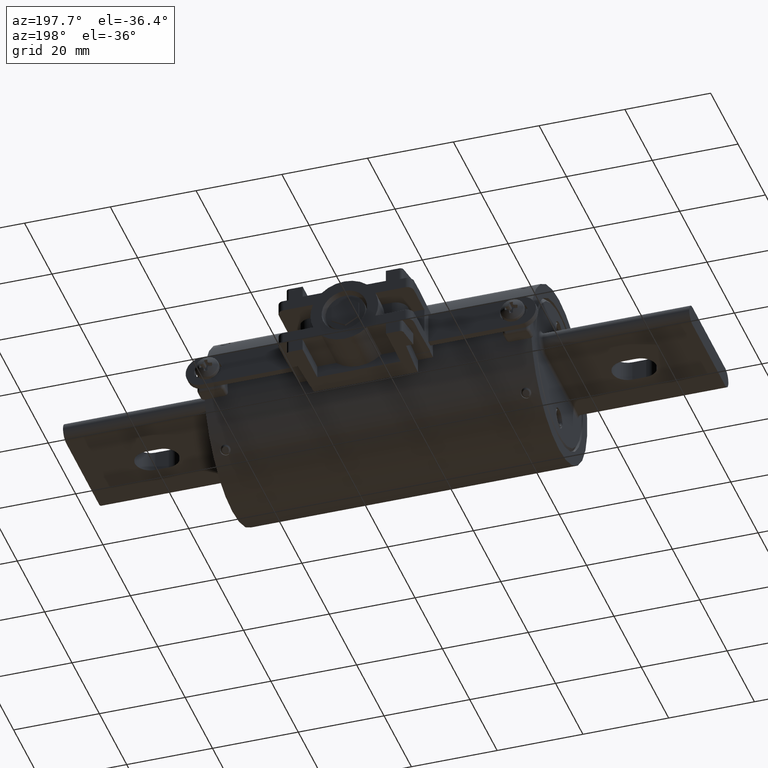
[diagram: clean part render]
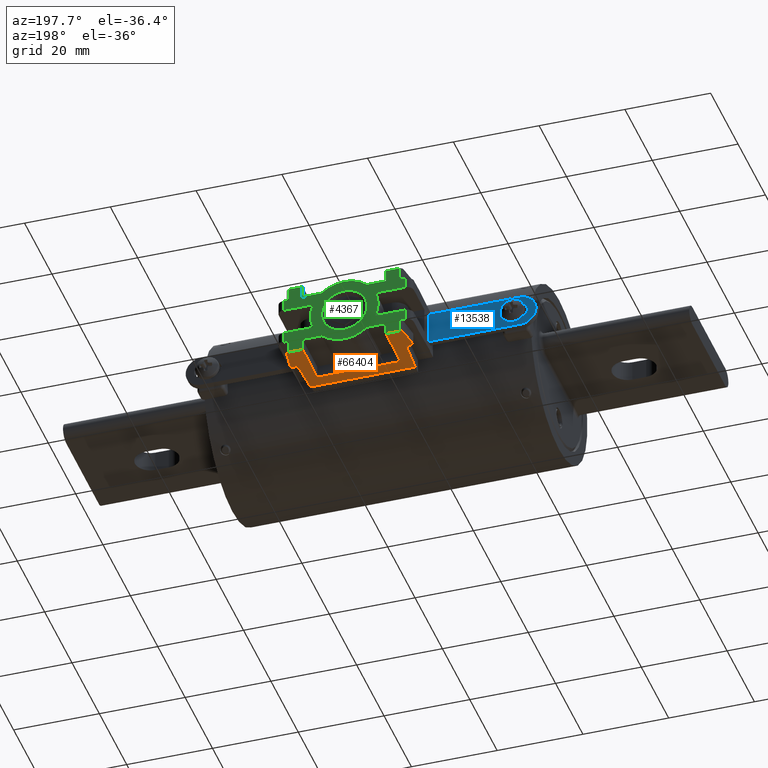
[diagram: same view with three faces highlighted in distinct colors, each labeled with its STEP entity id]
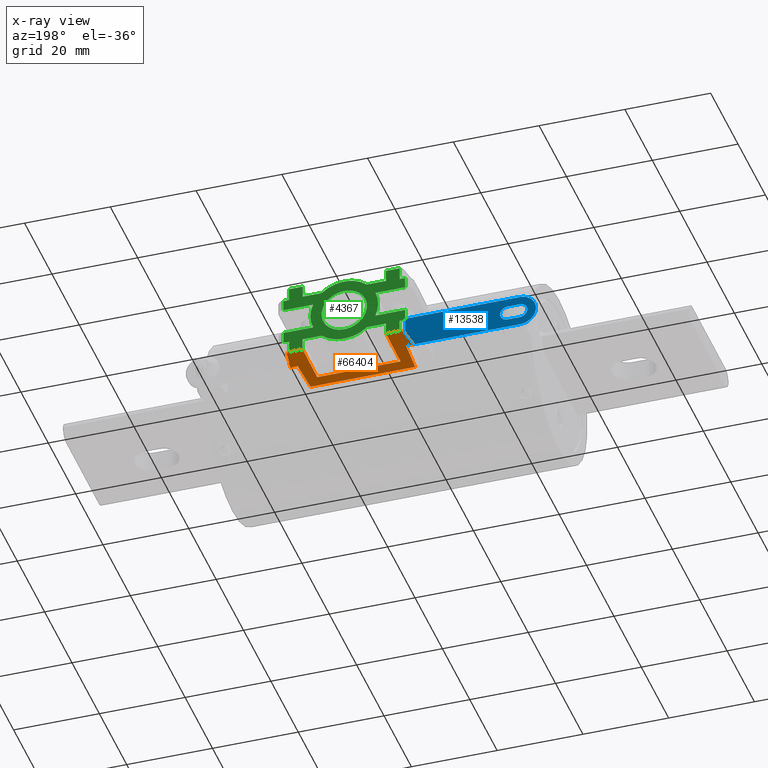
[diagram: x-ray of the same camera — body ghosted, the three highlighted faces saturated]
A machine part, auxiliary view with three faces highlighted in distinct colors.
The next image is the same camera in x-ray (body ghosted, the three faces saturated) — at least one of them is partly hidden behind the body in this view.
Their STEP definitions:

[orange] entity #66404 — the highlighted planar face has unit normal (0, -0.0175, 0.9998).
#1124 = CARTESIAN_POINT ( 'NONE',  ( 0.6865000000000000000, 1.259021418307482600, -0.3445016545476123900 ) ) ;
#1201 = CARTESIAN_POINT ( 'NONE',  ( 1.870000000000000100, 1.479021418307482800, -0.3406615402634045100 ) ) ;
#1484 = FACE_OUTER_BOUND ( 'NONE', #35522, .T. ) ;
#2175 = EDGE_CURVE ( 'NONE', #25905, #49283, #48193, .T. ) ;
#3234 = DIRECTION ( 'NONE',  ( -0.1391523146935431100, -0.9901201667701141600, -0.01728261179771005400 ) ) ;
#3770 = ORIENTED_EDGE ( 'NONE', *, *, #68914, .F. ) ;
#4120 = LINE ( 'NONE', #75244, #39088 ) ;
#5134 = VERTEX_POINT ( 'NONE', #77856 ) ;
#6123 = EDGE_CURVE ( 'NONE', #34374, #25382, #72603, .T. ) ;
#7663 = ORIENTED_EDGE ( 'NONE', *, *, #40968, .F. ) ;
#8501 = DIRECTION ( 'NONE',  ( 0.0000000000000000000, -0.01745240643728360200, 0.9998476951563912700 ) ) ;
#8981 = DIRECTION ( 'NONE',  ( 1.000000000000000000, 0.0000000000000000000, 0.0000000000000000000 ) ) ;
#9017 = VERTEX_POINT ( 'NONE', #48461 ) ;
#12663 = CARTESIAN_POINT ( 'NONE',  ( 1.870000000000000100, 1.479021418307482800, -0.3406615402634045100 ) ) ;
#13029 = EDGE_CURVE ( 'NONE', #56208, #80771, #26871, .T. ) ;
#13980 = AXIS2_PLACEMENT_3D ( 'NONE', #47887, #8501, #54540 ) ;
#14398 = VERTEX_POINT ( 'NONE', #72971 ) ;
#14563 = ORIENTED_EDGE ( 'NONE', *, *, #33420, .F. ) ;
#14853 = VECTOR ( 'NONE', #23648, 39.37007874015748100 ) ;
#17004 = EDGE_CURVE ( 'NONE', #25905, #19540, #54369, .T. ) ;
#19282 = VECTOR ( 'NONE', #3234, 39.37007874015748900 ) ;
#19540 = VERTEX_POINT ( 'NONE', #1124 ) ;
#19806 = ORIENTED_EDGE ( 'NONE', *, *, #63070, .T. ) ;
#20116 = CARTESIAN_POINT ( 'NONE',  ( 0.7137895437067658400, 1.453196611336284600, -0.3411123139458454000 ) ) ;
#20865 = CARTESIAN_POINT ( 'NONE',  ( 0.7434975857690131500, 1.479021418307482800, -0.3406615402634045100 ) ) ;
#21097 = CARTESIAN_POINT ( 'NONE',  ( 1.813500000000000100, 1.259021418307482600, -0.3445016545476124500 ) ) ;
#21176 = CARTESIAN_POINT ( 'NONE',  ( 0.8674999999999999400, 1.479021418307482800, -0.3406615402634045100 ) ) ;
#21568 = VECTOR ( 'NONE', #8981, 39.37007874015748100 ) ;
#23648 = DIRECTION ( 'NONE',  ( -1.000000000000000000, 0.0000000000000000000, 0.0000000000000000000 ) ) ;
#23928 = CARTESIAN_POINT ( 'NONE',  ( 1.870000000000000100, 1.059021418307482600, -0.3479926675332559700 ) ) ;
#24907 = CARTESIAN_POINT ( 'NONE',  ( 1.632500000000000100, 1.479021418307482800, -0.3406615402634045100 ) ) ;
#25359 = CARTESIAN_POINT ( 'NONE',  ( 1.632500000000000100, 0.9440214183074828700, -0.3500000000000009800 ) ) ;
#25382 = VERTEX_POINT ( 'NONE', #21097 ) ;
#25905 = VERTEX_POINT ( 'NONE', #67383 ) ;
#25918 = DIRECTION ( 'NONE',  ( -0.05232800705137966700, -0.9984778551437665200, -0.01742849579092196600 ) ) ;
#26694 = CARTESIAN_POINT ( 'NONE',  ( 0.7690084504741582200, 0.9440214183074828700, -0.3499999999999999800 ) ) ;
#26871 = LINE ( 'NONE', #1201, #42308 ) ;
#27121 = LINE ( 'NONE', #12663, #44638 ) ;
#27823 = LINE ( 'NONE', #25359, #62771 ) ;
#28486 = ORIENTED_EDGE ( 'NONE', *, *, #13029, .F. ) ;
#28506 = CARTESIAN_POINT ( 'NONE',  ( 0.7278112698438403700, 1.479021418307482600, -0.3406615402634045100 ) ) ;
#28513 = CARTESIAN_POINT ( 'NONE',  ( 1.870000000000000100, 1.259021418307482600, -0.3445016545476123900 ) ) ;
#30644 = CARTESIAN_POINT ( 'NONE',  ( 1.786210456293234200, 1.453196611336284600, -0.3411123139458455100 ) ) ;
#31349 = VERTEX_POINT ( 'NONE', #21176 ) ;
#32795 = LINE ( 'NONE', #38538, #84995 ) ;
#33420 = EDGE_CURVE ( 'NONE', #19540, #42002, #39078, .T. ) ;
#33851 = DIRECTION ( 'NONE',  ( 0.05232800705137966700, -0.9984778551437665200, -0.01742849579092196600 ) ) ;
#34058 = DIRECTION ( 'NONE',  ( -1.000000000000000000, -0.0000000000000000000, -0.0000000000000000000 ) ) ;
#34138 = CARTESIAN_POINT ( 'NONE',  ( 0.7720232079093861700, 0.8864964196055520300, -0.3510041025873388300 ) ) ;
#34374 = VERTEX_POINT ( 'NONE', #70148 ) ;
#35156 = EDGE_CURVE ( 'NONE', #31349, #49283, #27121, .T. ) ;
#35309 = CARTESIAN_POINT ( 'NONE',  ( 0.7524999999999999500, 1.259021418307482600, -0.3445016545476123900 ) ) ;
#35522 = EDGE_LOOP ( 'NONE', ( #78972, #46935, #64257, #3770, #28486, #40986, #36985, #54595, #19806, #66111, #7663, #14563, #58868, #43823 ) ) ;
#35970 = CARTESIAN_POINT ( 'NONE',  ( 0.8674999999999999400, 0.9440214183074828700, -0.3500000000000009800 ) ) ;
#36985 = ORIENTED_EDGE ( 'NONE', *, *, #6123, .T. ) ;
#37834 = VECTOR ( 'NONE', #77819, 39.37007874015748900 ) ;
#38538 = CARTESIAN_POINT ( 'NONE',  ( 1.870000000000000100, 1.259021418307482600, -0.3445016545476123900 ) ) ;
#39078 = LINE ( 'NONE', #28513, #21568 ) ;
#39088 = VECTOR ( 'NONE', #81773, 39.37007874015748100 ) ;
#40968 = EDGE_CURVE ( 'NONE', #42002, #61880, #74804, .T. ) ;
#40986 = ORIENTED_EDGE ( 'NONE', *, *, #80037, .T. ) ;
#42002 = VERTEX_POINT ( 'NONE', #35309 ) ;
#42308 = VECTOR ( 'NONE', #34058, 39.37007874015748100 ) ;
#42627 = CARTESIAN_POINT ( 'NONE',  ( 0.6660034048106331400, 1.113180565485096100, -0.3470473161028138100 ) ) ;
#43355 = VECTOR ( 'NONE', #25918, 39.37007874015748900 ) ;
#43581 = CARTESIAN_POINT ( 'NONE',  ( 1.756502414230987100, 1.479021418307482800, -0.3406615402634045100 ) ) ;
#43709 = VECTOR ( 'NONE', #81729, 39.37007874015748100 ) ;
#43823 = ORIENTED_EDGE ( 'NONE', *, *, #2175, .T. ) ;
#44638 = VECTOR ( 'NONE', #52108, 39.37007874015748100 ) ;
#44730 = EDGE_CURVE ( 'NONE', #65049, #9017, #65162, .T. ) ;
#45762 = LINE ( 'NONE', #35970, #43709 ) ;
#45788 = CARTESIAN_POINT ( 'NONE',  ( 1.731372185289855600, 0.9512843813488676100, -0.3498732245085423600 ) ) ;
#46935 = ORIENTED_EDGE ( 'NONE', *, *, #65472, .T. ) ;
#47887 = CARTESIAN_POINT ( 'NONE',  ( 1.870000000000000100, 0.9440214183074828700, -0.3500000000000009800 ) ) ;
#48193 =( BOUNDED_CURVE ( )  B_SPLINE_CURVE ( 3, ( #20116, #73631, #28506, #20865 ),
 .UNSPECIFIED., .F., .T. ) 
 B_SPLINE_CURVE_WITH_KNOTS ( ( 4, 4 ),
 ( 4.852015320544232700, 6.283185307179586200 ),
 .UNSPECIFIED. ) 
 CURVE ( )  GEOMETRIC_REPRESENTATION_ITEM ( )  RATIONAL_B_SPLINE_CURVE ( ( 1.000000000000000000, 0.8364730534818472000, 0.8364730534818472000, 1.000000000000000000 ) ) 
 REPRESENTATION_ITEM ( '' )  );
#48461 = CARTESIAN_POINT ( 'NONE',  ( 0.8674999999999999400, 1.059021418307482600, -0.3479926675332559700 ) ) ;
#49283 = VERTEX_POINT ( 'NONE', #81878 ) ;
#50255 = CARTESIAN_POINT ( 'NONE',  ( 1.772188730156159900, 1.479021418307482600, -0.3406615402634045100 ) ) ;
#52108 = DIRECTION ( 'NONE',  ( -1.000000000000000000, -0.0000000000000000000, -0.0000000000000000000 ) ) ;
#54369 = LINE ( 'NONE', #42627, #19282 ) ;
#54540 = DIRECTION ( 'NONE',  ( 0.0000000000000000000, -0.9998476951563912700, -0.01745240643728360200 ) ) ;
#54595 = ORIENTED_EDGE ( 'NONE', *, *, #79233, .T. ) ;
#56208 = VERTEX_POINT ( 'NONE', #56949 ) ;
#56949 = CARTESIAN_POINT ( 'NONE',  ( 1.756502414230987100, 1.479021418307482800, -0.3406615402634045100 ) ) ;
#58868 = ORIENTED_EDGE ( 'NONE', *, *, #17004, .F. ) ;
#60806 = LINE ( 'NONE', #45788, #43355 ) ;
#61880 = VERTEX_POINT ( 'NONE', #26694 ) ;
#62771 = VECTOR ( 'NONE', #71220, 39.37007874015748100 ) ;
#63070 = EDGE_CURVE ( 'NONE', #5134, #14398, #60806, .T. ) ;
#64257 = ORIENTED_EDGE ( 'NONE', *, *, #44730, .F. ) ;
#65049 = VERTEX_POINT ( 'NONE', #77514 ) ;
#65162 = LINE ( 'NONE', #23928, #14853 ) ;
#65472 = EDGE_CURVE ( 'NONE', #31349, #9017, #45762, .T. ) ;
#66111 = ORIENTED_EDGE ( 'NONE', *, *, #76316, .T. ) ;
#66404 = ADVANCED_FACE ( 'NONE', ( #1484 ), #73588, .F. ) ;
#66680 = VECTOR ( 'NONE', #33851, 39.37007874015748900 ) ;
#67383 = CARTESIAN_POINT ( 'NONE',  ( 0.7137895437067658400, 1.453196611336284600, -0.3411123139458454000 ) ) ;
#68914 = EDGE_CURVE ( 'NONE', #80771, #65049, #27823, .T. ) ;
#69751 =( BOUNDED_CURVE ( )  B_SPLINE_CURVE ( 3, ( #43581, #50255, #69866, #30644 ),
 .UNSPECIFIED., .F., .F. ) 
 B_SPLINE_CURVE_WITH_KNOTS ( ( 4, 4 ),
 ( 3.141592653589792700, 4.572762640225146700 ),
 .UNSPECIFIED. ) 
 CURVE ( )  GEOMETRIC_REPRESENTATION_ITEM ( )  RATIONAL_B_SPLINE_CURVE ( ( 1.000000000000000000, 0.8364730534818472000, 0.8364730534818472000, 1.000000000000000000 ) ) 
 REPRESENTATION_ITEM ( '' )  );
#69866 = CARTESIAN_POINT ( 'NONE',  ( 1.784027343063288900, 1.468730269113175600, -0.3408411729407770900 ) ) ;
#70148 = CARTESIAN_POINT ( 'NONE',  ( 1.786210456293234200, 1.453196611336284600, -0.3411123139458455100 ) ) ;
#70309 = DIRECTION ( 'NONE',  ( -1.000000000000000000, 0.0000000000000000000, 0.0000000000000000000 ) ) ;
#71220 = DIRECTION ( 'NONE',  ( 0.0000000000000000000, -0.9998476951563912700, -0.01745240643728360200 ) ) ;
#72603 = LINE ( 'NONE', #80514, #37834 ) ;
#72971 = CARTESIAN_POINT ( 'NONE',  ( 1.730991549525841700, 0.9440214183074828700, -0.3499999999999999800 ) ) ;
#73588 = PLANE ( 'NONE',  #13980 ) ;
#73631 = CARTESIAN_POINT ( 'NONE',  ( 0.7159726569367115300, 1.468730269113175600, -0.3408411729407770900 ) ) ;
#74804 = LINE ( 'NONE', #34138, #66680 ) ;
#75244 = CARTESIAN_POINT ( 'NONE',  ( 1.870000000000000100, 0.9440214183074828700, -0.3500000000000009800 ) ) ;
#76316 = EDGE_CURVE ( 'NONE', #14398, #61880, #4120, .T. ) ;
#77514 = CARTESIAN_POINT ( 'NONE',  ( 1.632500000000000100, 1.059021418307482600, -0.3479926675332559700 ) ) ;
#77819 = DIRECTION ( 'NONE',  ( 0.1391523146935431100, -0.9901201667701141600, -0.01728261179771005400 ) ) ;
#77856 = CARTESIAN_POINT ( 'NONE',  ( 1.747500000000000100, 1.259021418307482600, -0.3445016545476124500 ) ) ;
#78972 = ORIENTED_EDGE ( 'NONE', *, *, #35156, .F. ) ;
#79233 = EDGE_CURVE ( 'NONE', #25382, #5134, #32795, .T. ) ;
#80037 = EDGE_CURVE ( 'NONE', #56208, #34374, #69751, .T. ) ;
#80514 = CARTESIAN_POINT ( 'NONE',  ( 1.858007169878234800, 0.9423364493268814300, -0.3500294112429594400 ) ) ;
#80771 = VERTEX_POINT ( 'NONE', #24907 ) ;
#81729 = DIRECTION ( 'NONE',  ( 0.0000000000000000000, -0.9998476951563912700, -0.01745240643728360200 ) ) ;
#81773 = DIRECTION ( 'NONE',  ( -1.000000000000000000, -0.0000000000000000000, -0.0000000000000000000 ) ) ;
#81878 = CARTESIAN_POINT ( 'NONE',  ( 0.7434975857690131500, 1.479021418307482800, -0.3406615402634045100 ) ) ;
#84995 = VECTOR ( 'NONE', #70309, 39.37007874015748100 ) ;

[blue] entity #13538 — the highlighted planar face has unit normal (0, -1, 0).
#91 = EDGE_CURVE ( 'NONE', #3238, #36993, #51765, .T. ) ;
#910 = EDGE_CURVE ( 'NONE', #30925, #1655, #83120, .T. ) ;
#1555 = ORIENTED_EDGE ( 'NONE', *, *, #60329, .F. ) ;
#1655 = VERTEX_POINT ( 'NONE', #66361 ) ;
#3238 = VERTEX_POINT ( 'NONE', #28801 ) ;
#5140 = FACE_BOUND ( 'NONE', #72505, .T. ) ;
#6865 = ORIENTED_EDGE ( 'NONE', *, *, #48274, .F. ) ;
#7236 = FACE_OUTER_BOUND ( 'NONE', #34334, .T. ) ;
#8116 = VECTOR ( 'NONE', #83186, 39.37007874015748100 ) ;
#8848 = LINE ( 'NONE', #45461, #26304 ) ;
#10960 = DIRECTION ( 'NONE',  ( -1.063868379435155600E-016, -1.000000000000000000, 2.439458331621527500E-032 ) ) ;
#11690 = CARTESIAN_POINT ( 'NONE',  ( -0.2085000000000002400, 1.003521418307482800, 6.996885573116730700E-017 ) ) ;
#12056 = DIRECTION ( 'NONE',  ( 3.233356681621342300E-016, -1.000000000000000000, 5.401922923094452800E-034 ) ) ;
#13538 = ADVANCED_FACE ( 'NONE', ( #5140, #7236 ), #83726, .F. ) ;
#14116 = CARTESIAN_POINT ( 'NONE',  ( 0.8433647456194873800, 1.003521418307482800, -0.1479999999999999900 ) ) ;
#15345 = DIRECTION ( 'NONE',  ( 1.063868379435154700E-016, 1.000000000000000000, -2.439458331621527000E-032 ) ) ;
#15433 = VECTOR ( 'NONE', #27648, 39.37007874015748100 ) ;
#16409 = CARTESIAN_POINT ( 'NONE',  ( -0.09850000000000039300, 1.003521418307482800, -0.06999999999999996500 ) ) ;
#18251 = DIRECTION ( 'NONE',  ( 1.000000000000000000, 0.0000000000000000000, -5.551115123125782700E-017 ) ) ;
#18368 = ORIENTED_EDGE ( 'NONE', *, *, #74215, .F. ) ;
#21495 = VERTEX_POINT ( 'NONE', #78985 ) ;
#23352 = VERTEX_POINT ( 'NONE', #38630 ) ;
#23552 = AXIS2_PLACEMENT_3D ( 'NONE', #11690, #57715, #18251 ) ;
#26304 = VECTOR ( 'NONE', #84622, 39.37007874015748100 ) ;
#26372 = AXIS2_PLACEMENT_3D ( 'NONE', #54771, #15345, #61291 ) ;
#26398 = CARTESIAN_POINT ( 'NONE',  ( -0.09850000000000039300, 1.003521418307482800, -0.06999999999999996500 ) ) ;
#27648 = DIRECTION ( 'NONE',  ( 1.000000000000000000, 1.711689182127737700E-016, -5.551115123125780900E-017 ) ) ;
#28801 = CARTESIAN_POINT ( 'NONE',  ( -0.2105000000000009400, 1.003521418307482800, -0.1479999999999999400 ) ) ;
#29507 = CIRCLE ( 'NONE', #26372, 0.07000000000000007600 ) ;
#30925 = VERTEX_POINT ( 'NONE', #62614 ) ;
#32003 = CARTESIAN_POINT ( 'NONE',  ( -0.3585000000000005400, 1.003521418307482500, -0.1479999999999999400 ) ) ;
#33453 = CARTESIAN_POINT ( 'NONE',  ( 0.8433647456194873800, 1.003521418307482800, -0.1479999999999999900 ) ) ;
#34334 = EDGE_LOOP ( 'NONE', ( #55564, #1555, #43517, #6865 ) ) ;
#34819 = LINE ( 'NONE', #26398, #8116 ) ;
#36993 = VERTEX_POINT ( 'NONE', #14116 ) ;
#38630 = CARTESIAN_POINT ( 'NONE',  ( -0.2085000000000002400, 1.003521418307482800, -0.06999999999999993700 ) ) ;
#40674 = CIRCLE ( 'NONE', #23552, 0.07000000000000007600 ) ;
#42221 = DIRECTION ( 'NONE',  ( 1.000000000000000000, 3.233356681621342800E-016, -5.551115123125780900E-017 ) ) ;
#43517 = ORIENTED_EDGE ( 'NONE', *, *, #51457, .T. ) ;
#44914 = VERTEX_POINT ( 'NONE', #58981 ) ;
#45461 = CARTESIAN_POINT ( 'NONE',  ( -0.3585000000000005400, 1.003521418307482500, 0.1480000000000000800 ) ) ;
#48274 = EDGE_CURVE ( 'NONE', #36993, #21495, #60493, .T. ) ;
#50420 = CARTESIAN_POINT ( 'NONE',  ( -0.2105000000000009400, 1.003521418307482800, 7.861690301383067600E-017 ) ) ;
#51457 = EDGE_CURVE ( 'NONE', #44914, #21495, #8848, .T. ) ;
#51487 = CARTESIAN_POINT ( 'NONE',  ( -0.3585000000000005400, 1.003521418307482500, -0.1479999999999999400 ) ) ;
#51612 = CARTESIAN_POINT ( 'NONE',  ( -0.09850000000000039300, 1.003521418307482800, 0.07000000000000004800 ) ) ;
#51765 = LINE ( 'NONE', #32003, #69087 ) ;
#54771 = CARTESIAN_POINT ( 'NONE',  ( -0.09850000000000039300, 1.003521418307482800, 6.386262909572896500E-017 ) ) ;
#55564 = ORIENTED_EDGE ( 'NONE', *, *, #91, .F. ) ;
#57003 = DIRECTION ( 'NONE',  ( 1.000000000000000000, 0.0000000000000000000, -9.436895709313828600E-016 ) ) ;
#57715 = DIRECTION ( 'NONE',  ( 1.063868379435154700E-016, 1.000000000000000000, -2.439458331621527000E-032 ) ) ;
#58075 = DIRECTION ( 'NONE',  ( -1.000000000000000000, -3.233356681621342300E-016, 5.551115123125780900E-017 ) ) ;
#58981 = CARTESIAN_POINT ( 'NONE',  ( -0.2105000000000009400, 1.003521418307482800, 0.1480000000000000800 ) ) ;
#59569 = EDGE_CURVE ( 'NONE', #1655, #63423, #29507, .T. ) ;
#59942 = ORIENTED_EDGE ( 'NONE', *, *, #61828, .F. ) ;
#60105 = CIRCLE ( 'NONE', #76949, 0.1480000000000001900 ) ;
#60329 = EDGE_CURVE ( 'NONE', #44914, #3238, #60105, .T. ) ;
#60493 = LINE ( 'NONE', #33453, #75750 ) ;
#61291 = DIRECTION ( 'NONE',  ( 1.000000000000000000, 0.0000000000000000000, -5.551115123125782700E-017 ) ) ;
#61828 = EDGE_CURVE ( 'NONE', #63423, #23352, #34819, .T. ) ;
#62614 = CARTESIAN_POINT ( 'NONE',  ( -0.2085000000000002400, 1.003521418307482800, 0.07000000000000007600 ) ) ;
#62637 = AXIS2_PLACEMENT_3D ( 'NONE', #51487, #12056, #58075 ) ;
#63423 = VERTEX_POINT ( 'NONE', #16409 ) ;
#66361 = CARTESIAN_POINT ( 'NONE',  ( -0.09850000000000039300, 1.003521418307482800, 0.07000000000000004800 ) ) ;
#69087 = VECTOR ( 'NONE', #42221, 39.37007874015748100 ) ;
#69973 = ORIENTED_EDGE ( 'NONE', *, *, #59569, .F. ) ;
#72505 = EDGE_LOOP ( 'NONE', ( #59942, #69973, #79263, #18368 ) ) ;
#74215 = EDGE_CURVE ( 'NONE', #23352, #30925, #40674, .T. ) ;
#75750 = VECTOR ( 'NONE', #79156, 39.37007874015748100 ) ;
#76949 = AXIS2_PLACEMENT_3D ( 'NONE', #50420, #10960, #57003 ) ;
#78985 = CARTESIAN_POINT ( 'NONE',  ( 0.8433647456194873800, 1.003521418307482800, 0.1479999999999999900 ) ) ;
#79156 = DIRECTION ( 'NONE',  ( 5.551115123125786400E-017, 1.848892746611746700E-032, 1.000000000000000000 ) ) ;
#79263 = ORIENTED_EDGE ( 'NONE', *, *, #910, .F. ) ;
#83120 = LINE ( 'NONE', #51612, #15433 ) ;
#83186 = DIRECTION ( 'NONE',  ( -1.000000000000000000, -1.711689182127737700E-016, 5.551115123125780900E-017 ) ) ;
#83726 = PLANE ( 'NONE',  #62637 ) ;
#84622 = DIRECTION ( 'NONE',  ( 1.000000000000000000, 3.233356681621342800E-016, -5.551115123125780900E-017 ) ) ;

[green] entity #4367 — the highlighted planar face has unit normal (0, -1, -0).
#207 = ORIENTED_EDGE ( 'NONE', *, *, #32108, .F. ) ;
#673 = EDGE_CURVE ( 'NONE', #31743, #28937, #7319, .T. ) ;
#705 = DIRECTION ( 'NONE',  ( 0.0000000000000000000, -1.164398131361203600E-015, 1.000000000000000000 ) ) ;
#941 = DIRECTION ( 'NONE',  ( -1.000000000000000000, -0.0000000000000000000, 0.0000000000000000000 ) ) ;
#1201 = CARTESIAN_POINT ( 'NONE',  ( 1.870000000000000100, 1.479021418307482800, -0.3406615402634045100 ) ) ;
#1472 = DIRECTION ( 'NONE',  ( -7.043945234703544700E-018, 5.012027464914204000E-017, -1.000000000000000000 ) ) ;
#1679 = EDGE_CURVE ( 'NONE', #21306, #3062, #15197, .T. ) ;
#3062 = VERTEX_POINT ( 'NONE', #28019 ) ;
#3096 = DIRECTION ( 'NONE',  ( 0.0000000000000000000, -1.000000000000000000, 5.012027464914204000E-017 ) ) ;
#3561 = CARTESIAN_POINT ( 'NONE',  ( 0.8674999999999999400, 1.479021418307482800, 0.2319926675332559500 ) ) ;
#3816 = LINE ( 'NONE', #49188, #71543 ) ;
#3848 = EDGE_CURVE ( 'NONE', #10910, #44595, #48394, .T. ) ;
#4028 = AXIS2_PLACEMENT_3D ( 'NONE', #23432, #83633, #29161 ) ;
#4367 = ADVANCED_FACE ( 'NONE', ( #59507, #76796 ), #46122, .F. ) ;
#4483 = DIRECTION ( 'NONE',  ( -0.0000000000000000000, 1.000000000000000000, 5.012027464914204000E-017 ) ) ;
#4568 = EDGE_CURVE ( 'NONE', #46248, #50728, #11576, .T. ) ;
#4662 = VERTEX_POINT ( 'NONE', #7083 ) ;
#4667 = AXIS2_PLACEMENT_3D ( 'NONE', #57671, #57597, #57492 ) ;
#4987 = LINE ( 'NONE', #8734, #72682 ) ;
#5057 = ORIENTED_EDGE ( 'NONE', *, *, #5914, .T. ) ;
#5209 = VERTEX_POINT ( 'NONE', #37797 ) ;
#5251 = VERTEX_POINT ( 'NONE', #23931 ) ;
#5349 = DIRECTION ( 'NONE',  ( 1.000000000000000000, -0.0000000000000000000, 0.0000000000000000000 ) ) ;
#5391 = DIRECTION ( 'NONE',  ( 0.0000000000000000000, -5.012027464914204000E-017, 1.000000000000000000 ) ) ;
#5537 = CARTESIAN_POINT ( 'NONE',  ( 0.4808447819989167300, 1.479021418307482800, -0.2231598857157920700 ) ) ;
#5649 = AXIS2_PLACEMENT_3D ( 'NONE', #43882, #4483, #50555 ) ;
#5888 = EDGE_CURVE ( 'NONE', #44595, #54117, #4987, .T. ) ;
#5914 = EDGE_CURVE ( 'NONE', #50365, #67453, #64567, .T. ) ;
#6204 = ORIENTED_EDGE ( 'NONE', *, *, #3848, .F. ) ;
#6261 = EDGE_CURVE ( 'NONE', #23620, #56208, #3816, .T. ) ;
#6959 = CARTESIAN_POINT ( 'NONE',  ( 0.4808447819989167300, 1.479021418307482800, 0.2231598857157920700 ) ) ;
#7079 = CARTESIAN_POINT ( 'NONE',  ( 1.250000000000000000, 1.479021418307482800, -8.537024980200822600E-018 ) ) ;
#7083 = CARTESIAN_POINT ( 'NONE',  ( 1.632500000000000100, 1.479021418307482800, 0.3406615402634065600 ) ) ;
#7160 = EDGE_CURVE ( 'NONE', #31743, #20428, #18868, .T. ) ;
#7271 = CARTESIAN_POINT ( 'NONE',  ( 0.9230742016356096000, 1.479021418307482800, -0.2231598857157920700 ) ) ;
#7319 = CIRCLE ( 'NONE', #4028, 0.3113347155278811700 ) ;
#7740 = ORIENTED_EDGE ( 'NONE', *, *, #4568, .T. ) ;
#7823 = VERTEX_POINT ( 'NONE', #34084 ) ;
#7920 = ORIENTED_EDGE ( 'NONE', *, *, #37244, .T. ) ;
#8104 = LINE ( 'NONE', #68984, #23504 ) ;
#8548 = CARTESIAN_POINT ( 'NONE',  ( 1.632500000000000100, 1.479021418307482800, -0.2319926675332559500 ) ) ;
#8612 = LINE ( 'NONE', #34629, #41535 ) ;
#8734 = CARTESIAN_POINT ( 'NONE',  ( 1.537279141416195900, 1.479021418307482800, 0.1231416724046706400 ) ) ;
#8930 = ORIENTED_EDGE ( 'NONE', *, *, #23088, .F. ) ;
#9175 = VERTEX_POINT ( 'NONE', #73267 ) ;
#9211 = LINE ( 'NONE', #64237, #76908 ) ;
#9247 = VERTEX_POINT ( 'NONE', #62161 ) ;
#9377 = VERTEX_POINT ( 'NONE', #50182 ) ;
#9719 = DIRECTION ( 'NONE',  ( -0.0000000000000000000, -1.000000000000000000, -5.012027464914204000E-017 ) ) ;
#10375 = CIRCLE ( 'NONE', #84396, 0.3113347155278811700 ) ;
#10523 = EDGE_CURVE ( 'NONE', #9175, #9247, #16009, .T. ) ;
#10910 = VERTEX_POINT ( 'NONE', #81225 ) ;
#10979 = AXIS2_PLACEMENT_3D ( 'NONE', #82630, #3096, #62663 ) ;
#11576 = LINE ( 'NONE', #29889, #61932 ) ;
#12095 = ORIENTED_EDGE ( 'NONE', *, *, #41407, .T. ) ;
#12566 = VERTEX_POINT ( 'NONE', #8548 ) ;
#12663 = CARTESIAN_POINT ( 'NONE',  ( 1.870000000000000100, 1.479021418307482800, -0.3406615402634045100 ) ) ;
#13029 = EDGE_CURVE ( 'NONE', #56208, #80771, #26871, .T. ) ;
#13498 = CIRCLE ( 'NONE', #67655, 0.3113347155278811700 ) ;
#13525 = CARTESIAN_POINT ( 'NONE',  ( 1.756502414230987100, 1.479021418307482800, -0.2231598857157920700 ) ) ;
#13550 = ORIENTED_EDGE ( 'NONE', *, *, #13029, .T. ) ;
#13635 = DIRECTION ( 'NONE',  ( 1.754926680137356000E-015, 0.0000000000000000000, -1.000000000000000000 ) ) ;
#13788 = DIRECTION ( 'NONE',  ( 1.000000000000000000, -0.0000000000000000000, -0.0000000000000000000 ) ) ;
#14223 = VECTOR ( 'NONE', #23464, 39.37007874015748100 ) ;
#14382 = DIRECTION ( 'NONE',  ( -0.0000000000000000000, 5.012027464914204000E-017, -1.000000000000000000 ) ) ;
#14842 = CARTESIAN_POINT ( 'NONE',  ( 0.7434975857690131500, 1.479021418307482800, 0.2231598857157920700 ) ) ;
#15197 = CIRCLE ( 'NONE', #4667, 0.3113347155278811700 ) ;
#15663 = DIRECTION ( 'NONE',  ( 1.000000000000000000, -0.0000000000000000000, -0.0000000000000000000 ) ) ;
#16009 = LINE ( 'NONE', #44765, #66349 ) ;
#16032 = ORIENTED_EDGE ( 'NONE', *, *, #16649, .T. ) ;
#16062 = EDGE_CURVE ( 'NONE', #20428, #5251, #40302, .T. ) ;
#16377 = ORIENTED_EDGE ( 'NONE', *, *, #75687, .F. ) ;
#16649 = EDGE_CURVE ( 'NONE', #12566, #22026, #83072, .T. ) ;
#16823 = EDGE_CURVE ( 'NONE', #28937, #75916, #47232, .T. ) ;
#17050 = VECTOR ( 'NONE', #33067, 39.37007874015748100 ) ;
#17123 = CARTESIAN_POINT ( 'NONE',  ( 1.756502414230987100, 1.479021418307482800, 0.3406615402634065600 ) ) ;
#17796 = EDGE_CURVE ( 'NONE', #3062, #50365, #68489, .T. ) ;
#17999 = ORIENTED_EDGE ( 'NONE', *, *, #34533, .T. ) ;
#18041 = DIRECTION ( 'NONE',  ( -1.000000000000000000, 0.0000000000000000000, 0.0000000000000000000 ) ) ;
#18206 = VECTOR ( 'NONE', #62269, 39.37007874015748100 ) ;
#18216 = CARTESIAN_POINT ( 'NONE',  ( 0.9627208585838040700, 1.479021418307482800, 0.1200000000000000000 ) ) ;
#18580 = CARTESIAN_POINT ( 'NONE',  ( 1.745000000000000100, 1.479021418307482300, 0.1231416724046706500 ) ) ;
#18868 = CIRCLE ( 'NONE', #38794, 0.3113347155278811700 ) ;
#19024 = DIRECTION ( 'NONE',  ( 0.0000000000000000000, -5.012027464914204000E-017, 1.000000000000000000 ) ) ;
#19271 = LINE ( 'NONE', #46753, #36833 ) ;
#19753 = CARTESIAN_POINT ( 'NONE',  ( 0.7550000000000000000, 1.479021418307482800, -0.1231416724046706500 ) ) ;
#20280 = LINE ( 'NONE', #39199, #37825 ) ;
#20428 = VERTEX_POINT ( 'NONE', #54484 ) ;
#21154 = CARTESIAN_POINT ( 'NONE',  ( 0.9627208585838040700, 1.479021418307482800, -0.1231416724046706400 ) ) ;
#21176 = CARTESIAN_POINT ( 'NONE',  ( 0.8674999999999999400, 1.479021418307482800, -0.3406615402634045100 ) ) ;
#21306 = VERTEX_POINT ( 'NONE', #83112 ) ;
#21520 = CARTESIAN_POINT ( 'NONE',  ( 1.810000000000000100, 1.479021418307482800, -0.3406615402634045100 ) ) ;
#22026 = VERTEX_POINT ( 'NONE', #71519 ) ;
#22265 = ORIENTED_EDGE ( 'NONE', *, *, #35156, .T. ) ;
#22334 = LINE ( 'NONE', #37064, #70556 ) ;
#22602 = VERTEX_POINT ( 'NONE', #45987 ) ;
#23045 = CARTESIAN_POINT ( 'NONE',  ( 1.535946557262379800, 1.479021418307482800, 0.1231416724046706400 ) ) ;
#23088 = EDGE_CURVE ( 'NONE', #12566, #80771, #62452, .T. ) ;
#23358 = CARTESIAN_POINT ( 'NONE',  ( 1.745000000000000100, 1.479021418307482300, -0.1231416724046707200 ) ) ;
#23432 = CARTESIAN_POINT ( 'NONE',  ( 1.250000000000000000, 1.479021418307482800, -1.475193903669443500E-017 ) ) ;
#23464 = DIRECTION ( 'NONE',  ( 1.000000000000000000, -0.0000000000000000000, -0.0000000000000000000 ) ) ;
#23504 = VECTOR ( 'NONE', #29734, 39.37007874015748100 ) ;
#23620 = VERTEX_POINT ( 'NONE', #13525 ) ;
#23703 = CARTESIAN_POINT ( 'NONE',  ( 1.042373635335897700, 1.479021418307482800, -0.2319926675332559500 ) ) ;
#23814 = VECTOR ( 'NONE', #14382, 39.37007874015748100 ) ;
#23931 = CARTESIAN_POINT ( 'NONE',  ( 0.9640534427376202800, 1.479021418307482800, -0.1231416724046706400 ) ) ;
#24281 = VERTEX_POINT ( 'NONE', #21154 ) ;
#24794 = CARTESIAN_POINT ( 'NONE',  ( 1.810000000000000100, 1.479021418307482800, -0.2231598857157921200 ) ) ;
#24907 = CARTESIAN_POINT ( 'NONE',  ( 1.632500000000000100, 1.479021418307482800, -0.3406615402634045100 ) ) ;
#25233 = DIRECTION ( 'NONE',  ( 1.000000000000000000, -0.0000000000000000000, -0.0000000000000000000 ) ) ;
#26359 = ORIENTED_EDGE ( 'NONE', *, *, #57776, .T. ) ;
#26871 = LINE ( 'NONE', #1201, #42308 ) ;
#27121 = LINE ( 'NONE', #12663, #44638 ) ;
#27599 = EDGE_CURVE ( 'NONE', #66570, #7823, #19271, .T. ) ;
#27623 = CARTESIAN_POINT ( 'NONE',  ( 1.250000000000000000, 1.479021418307482800, 8.537024980200822600E-018 ) ) ;
#28019 = CARTESIAN_POINT ( 'NONE',  ( 1.535946557262379800, 1.479021418307482800, -0.1231416724046706400 ) ) ;
#28209 = ORIENTED_EDGE ( 'NONE', *, *, #68049, .T. ) ;
#28937 = VERTEX_POINT ( 'NONE', #68903 ) ;
#29130 = EDGE_CURVE ( 'NONE', #67453, #58393, #53795, .T. ) ;
#29161 = DIRECTION ( 'NONE',  ( 0.0000000000000000000, 0.0000000000000000000, -1.000000000000000000 ) ) ;
#29364 = ORIENTED_EDGE ( 'NONE', *, *, #38016, .T. ) ;
#29734 = DIRECTION ( 'NONE',  ( -7.043945234703544700E-018, -5.012027464914204000E-017, 1.000000000000000000 ) ) ;
#29741 = VECTOR ( 'NONE', #941, 39.37007874015748100 ) ;
#29889 = CARTESIAN_POINT ( 'NONE',  ( 0.6426000233871691500, 1.479021418307482800, -0.2319926675332559500 ) ) ;
#30047 = CARTESIAN_POINT ( 'NONE',  ( 0.6426000233871691500, 1.479021418307482800, 0.2319926675332559500 ) ) ;
#30412 = EDGE_CURVE ( 'NONE', #77828, #9247, #8612, .T. ) ;
#30732 = CARTESIAN_POINT ( 'NONE',  ( 1.537279141416195900, 1.479021418307482800, -0.1231416724046706400 ) ) ;
#30815 = ORIENTED_EDGE ( 'NONE', *, *, #673, .T. ) ;
#30888 = ORIENTED_EDGE ( 'NONE', *, *, #16062, .F. ) ;
#31066 = EDGE_CURVE ( 'NONE', #54117, #5209, #55758, .T. ) ;
#31349 = VERTEX_POINT ( 'NONE', #21176 ) ;
#31356 = DIRECTION ( 'NONE',  ( -0.0000000000000000000, -1.000000000000000000, -5.012027464914204000E-017 ) ) ;
#31643 = VECTOR ( 'NONE', #1472, 39.37007874015748100 ) ;
#31743 = VERTEX_POINT ( 'NONE', #18216 ) ;
#32108 = EDGE_CURVE ( 'NONE', #23620, #58393, #44207, .T. ) ;
#32452 = CARTESIAN_POINT ( 'NONE',  ( 0.9627208585838040700, 1.479021418307482800, -0.1231416724046706400 ) ) ;
#33003 = VERTEX_POINT ( 'NONE', #49384 ) ;
#33017 = ORIENTED_EDGE ( 'NONE', *, *, #34345, .F. ) ;
#33067 = DIRECTION ( 'NONE',  ( -1.000000000000000000, -0.0000000000000000000, -0.0000000000000000000 ) ) ;
#33075 = LINE ( 'NONE', #41073, #50607 ) ;
#33281 = ORIENTED_EDGE ( 'NONE', *, *, #77744, .T. ) ;
#33523 = VECTOR ( 'NONE', #66230, 39.37007874015748100 ) ;
#33641 = VECTOR ( 'NONE', #15663, 39.37007874015748100 ) ;
#33680 = DIRECTION ( 'NONE',  ( -1.000000000000000000, -0.0000000000000000000, -0.0000000000000000000 ) ) ;
#34058 = DIRECTION ( 'NONE',  ( -1.000000000000000000, -0.0000000000000000000, -0.0000000000000000000 ) ) ;
#34084 = CARTESIAN_POINT ( 'NONE',  ( 0.8674999999999999400, 1.479021418307482800, 0.3406615402634065600 ) ) ;
#34266 = DIRECTION ( 'NONE',  ( 0.0000000000000000000, 0.0000000000000000000, -1.000000000000000000 ) ) ;
#34345 = EDGE_CURVE ( 'NONE', #48871, #48871, #50123, .T. ) ;
#34533 = EDGE_CURVE ( 'NONE', #78358, #47218, #49042, .T. ) ;
#34629 = CARTESIAN_POINT ( 'NONE',  ( 0.9230742016356096000, 1.479021418307482800, 0.2231598857157920700 ) ) ;
#35127 = VECTOR ( 'NONE', #43109, 39.37007874015748100 ) ;
#35156 = EDGE_CURVE ( 'NONE', #31349, #49283, #27121, .T. ) ;
#35380 = CARTESIAN_POINT ( 'NONE',  ( 1.632500000000000100, 1.479021418307482800, 0.3406615402634065600 ) ) ;
#35587 = ORIENTED_EDGE ( 'NONE', *, *, #30412, .F. ) ;
#35747 = LINE ( 'NONE', #49142, #18206 ) ;
#35952 = VERTEX_POINT ( 'NONE', #74780 ) ;
#36281 = LINE ( 'NONE', #7271, #43469 ) ;
#36833 = VECTOR ( 'NONE', #705, 39.37007874015748100 ) ;
#36929 = AXIS2_PLACEMENT_3D ( 'NONE', #43313, #43119, #42923 ) ;
#37064 = CARTESIAN_POINT ( 'NONE',  ( 1.870000000000000100, 1.479021418307482800, 0.3406615402634065600 ) ) ;
#37244 = EDGE_CURVE ( 'NONE', #77828, #9377, #52652, .T. ) ;
#37696 = EDGE_CURVE ( 'NONE', #78358, #66570, #9211, .T. ) ;
#37797 = CARTESIAN_POINT ( 'NONE',  ( 1.810000000000000100, 1.479021418307482300, 0.1231416724046706500 ) ) ;
#37825 = VECTOR ( 'NONE', #19024, 39.37007874015748100 ) ;
#38016 = EDGE_CURVE ( 'NONE', #49283, #22602, #8104, .T. ) ;
#38154 = DIRECTION ( 'NONE',  ( -1.000000000000000000, 0.0000000000000000000, 0.0000000000000000000 ) ) ;
#38266 = DIRECTION ( 'NONE',  ( -0.0000000000000000000, 5.012027464914204000E-017, -1.000000000000000000 ) ) ;
#38794 = AXIS2_PLACEMENT_3D ( 'NONE', #43595, #43494, #43385 ) ;
#38838 = EDGE_CURVE ( 'NONE', #24281, #69932, #69399, .T. ) ;
#38871 = ORIENTED_EDGE ( 'NONE', *, *, #10523, .T. ) ;
#39199 = CARTESIAN_POINT ( 'NONE',  ( 0.6900000000000000600, 1.479021418307482800, -0.3406615402634045100 ) ) ;
#39438 = ORIENTED_EDGE ( 'NONE', *, *, #45667, .F. ) ;
#39496 = ORIENTED_EDGE ( 'NONE', *, *, #37696, .F. ) ;
#40294 = VECTOR ( 'NONE', #25233, 39.37007874015748100 ) ;
#40302 = CIRCLE ( 'NONE', #53016, 0.3113347155278811700 ) ;
#40906 = CARTESIAN_POINT ( 'NONE',  ( 1.756502414230987100, 1.479021418307482800, 0.2231598857157920700 ) ) ;
#40978 = CARTESIAN_POINT ( 'NONE',  ( 1.250000000000000000, 1.479021418307482800, -0.2082911558409033200 ) ) ;
#41073 = CARTESIAN_POINT ( 'NONE',  ( 1.870000000000000100, 1.479021418307482800, 0.3406615402634065600 ) ) ;
#41099 = ORIENTED_EDGE ( 'NONE', *, *, #7160, .F. ) ;
#41407 = EDGE_CURVE ( 'NONE', #49306, #33003, #81743, .T. ) ;
#41535 = VECTOR ( 'NONE', #73853, 39.37007874015748100 ) ;
#42034 = ORIENTED_EDGE ( 'NONE', *, *, #1679, .T. ) ;
#42251 = ORIENTED_EDGE ( 'NONE', *, *, #79277, .T. ) ;
#42308 = VECTOR ( 'NONE', #34058, 39.37007874015748100 ) ;
#42923 = DIRECTION ( 'NONE',  ( 0.0000000000000000000, 5.012027464914204000E-017, -1.000000000000000000 ) ) ;
#43109 = DIRECTION ( 'NONE',  ( -7.043945234703544700E-018, -5.012027464914204000E-017, 1.000000000000000000 ) ) ;
#43119 = DIRECTION ( 'NONE',  ( 0.0000000000000000000, -1.000000000000000000, -5.012027464914204000E-017 ) ) ;
#43246 = ORIENTED_EDGE ( 'NONE', *, *, #79550, .F. ) ;
#43313 = CARTESIAN_POINT ( 'NONE',  ( 1.870000000000000100, 1.479021418307482800, -0.3406615402634045100 ) ) ;
#43385 = DIRECTION ( 'NONE',  ( 0.0000000000000000000, 0.0000000000000000000, 1.000000000000000000 ) ) ;
#43469 = VECTOR ( 'NONE', #33680, 39.37007874015748100 ) ;
#43494 = DIRECTION ( 'NONE',  ( -0.0000000000000000000, -1.000000000000000000, -5.012027464914204000E-017 ) ) ;
#43595 = CARTESIAN_POINT ( 'NONE',  ( 1.250000000000000000, 1.479021418307482800, 1.475193903669443500E-017 ) ) ;
#43837 = DIRECTION ( 'NONE',  ( 0.0000000000000000000, -1.164398131361203600E-015, -1.000000000000000000 ) ) ;
#43882 = CARTESIAN_POINT ( 'NONE',  ( 1.250000000000000000, 1.479021418307482800, 1.048905715596262800E-017 ) ) ;
#44207 = LINE ( 'NONE', #5537, #78896 ) ;
#44299 = LINE ( 'NONE', #35380, #76988 ) ;
#44506 = CARTESIAN_POINT ( 'NONE',  ( 0.6900000000000000600, 1.479021418307482800, -0.2231598857157920700 ) ) ;
#44595 = VERTEX_POINT ( 'NONE', #23045 ) ;
#44638 = VECTOR ( 'NONE', #52108, 39.37007874015748100 ) ;
#44765 = CARTESIAN_POINT ( 'NONE',  ( 0.6900000000000000600, 1.479021418307482800, -0.3406615402634045100 ) ) ;
#45019 = VECTOR ( 'NONE', #43837, 39.37007874015748100 ) ;
#45070 = CARTESIAN_POINT ( 'NONE',  ( 0.9627208585838040700, 1.479021418307482800, 0.1231416724046706400 ) ) ;
#45667 = EDGE_CURVE ( 'NONE', #5251, #24281, #49536, .T. ) ;
#45695 = CARTESIAN_POINT ( 'NONE',  ( 1.042373635335897700, 1.479021418307482800, 0.2319926675332559500 ) ) ;
#45987 = CARTESIAN_POINT ( 'NONE',  ( 0.7434975857690131500, 1.479021418307482800, -0.2231598857157920700 ) ) ;
#46122 = PLANE ( 'NONE',  #36929 ) ;
#46248 = VERTEX_POINT ( 'NONE', #23703 ) ;
#46475 = CARTESIAN_POINT ( 'NONE',  ( 0.8674999999999999400, 1.479021418307482800, -0.3406615402634065600 ) ) ;
#46753 = CARTESIAN_POINT ( 'NONE',  ( 0.8674999999999999400, 1.479021418307482800, 0.3113347155278811700 ) ) ;
#47218 = VERTEX_POINT ( 'NONE', #60035 ) ;
#47232 = LINE ( 'NONE', #79492, #29741 ) ;
#47283 = VECTOR ( 'NONE', #75871, 39.37007874015748100 ) ;
#47309 = EDGE_CURVE ( 'NONE', #7823, #9377, #33075, .T. ) ;
#47434 = VECTOR ( 'NONE', #52281, 39.37007874015748100 ) ;
#47539 = DIRECTION ( 'NONE',  ( -7.043945234703544700E-018, 5.012027464914204000E-017, -1.000000000000000000 ) ) ;
#47922 = CARTESIAN_POINT ( 'NONE',  ( 0.8674999999999999400, 1.479021418307482800, -0.2319926675332559500 ) ) ;
#48325 = VECTOR ( 'NONE', #71841, 39.37007874015748100 ) ;
#48363 = ORIENTED_EDGE ( 'NONE', *, *, #17796, .T. ) ;
#48394 = CIRCLE ( 'NONE', #10979, 0.3113347155278811700 ) ;
#48467 = CARTESIAN_POINT ( 'NONE',  ( 1.537279141416195900, 1.479021418307482800, -0.1231416724046706400 ) ) ;
#48871 = VERTEX_POINT ( 'NONE', #40978 ) ;
#49042 = CIRCLE ( 'NONE', #71554, 0.3113347155278811700 ) ;
#49142 = CARTESIAN_POINT ( 'NONE',  ( 0.7550000000000000000, 1.479021418307482800, 0.1231416724046705800 ) ) ;
#49169 = CARTESIAN_POINT ( 'NONE',  ( 1.250000000000000000, 1.479021418307482800, 1.475193903669443500E-017 ) ) ;
#49188 = CARTESIAN_POINT ( 'NONE',  ( 1.756502414230987100, 1.479021418307482800, -0.3406615402634045100 ) ) ;
#49283 = VERTEX_POINT ( 'NONE', #81878 ) ;
#49306 = VERTEX_POINT ( 'NONE', #17123 ) ;
#49384 = CARTESIAN_POINT ( 'NONE',  ( 1.756502414230987100, 1.479021418307482800, 0.2231598857157920700 ) ) ;
#49391 = LINE ( 'NONE', #30047, #47283 ) ;
#49482 = CARTESIAN_POINT ( 'NONE',  ( 0.7434975857690131500, 1.479021418307482800, -0.3406615402634045100 ) ) ;
#49536 = LINE ( 'NONE', #32452, #47434 ) ;
#50123 = CIRCLE ( 'NONE', #5649, 0.2082911558409033200 ) ;
#50182 = CARTESIAN_POINT ( 'NONE',  ( 0.7434975857690131500, 1.479021418307482800, 0.3406615402634065600 ) ) ;
#50365 = VERTEX_POINT ( 'NONE', #30732 ) ;
#50442 = CARTESIAN_POINT ( 'NONE',  ( 0.6900000000000000600, 1.479021418307482800, -0.1231416724046706500 ) ) ;
#50555 = DIRECTION ( 'NONE',  ( 0.0000000000000000000, 0.0000000000000000000, -1.000000000000000000 ) ) ;
#50607 = VECTOR ( 'NONE', #54331, 39.37007874015748100 ) ;
#50728 = VERTEX_POINT ( 'NONE', #47922 ) ;
#50937 = ORIENTED_EDGE ( 'NONE', *, *, #47309, .F. ) ;
#51022 = EDGE_CURVE ( 'NONE', #82208, #69932, #20280, .T. ) ;
#51239 = ORIENTED_EDGE ( 'NONE', *, *, #31066, .F. ) ;
#51545 = DIRECTION ( 'NONE',  ( 1.000000000000000000, -0.0000000000000000000, -0.0000000000000000000 ) ) ;
#51707 = ORIENTED_EDGE ( 'NONE', *, *, #6261, .T. ) ;
#51726 = VECTOR ( 'NONE', #38266, 39.37007874015748100 ) ;
#52108 = DIRECTION ( 'NONE',  ( -1.000000000000000000, -0.0000000000000000000, -0.0000000000000000000 ) ) ;
#52217 = CARTESIAN_POINT ( 'NONE',  ( 0.6426000233871691500, 1.479021418307482800, -0.2319926675332559500 ) ) ;
#52281 = DIRECTION ( 'NONE',  ( -1.000000000000000000, -0.0000000000000000000, -0.0000000000000000000 ) ) ;
#52554 = VERTEX_POINT ( 'NONE', #63066 ) ;
#52652 = LINE ( 'NONE', #49482, #35127 ) ;
#53016 = AXIS2_PLACEMENT_3D ( 'NONE', #70546, #31356, #77086 ) ;
#53068 = DIRECTION ( 'NONE',  ( -0.0000000000000000000, 1.000000000000000000, 5.012027464914204000E-017 ) ) ;
#53795 = LINE ( 'NONE', #77411, #51726 ) ;
#54117 = VERTEX_POINT ( 'NONE', #73546 ) ;
#54331 = DIRECTION ( 'NONE',  ( -1.000000000000000000, -0.0000000000000000000, -0.0000000000000000000 ) ) ;
#54484 = CARTESIAN_POINT ( 'NONE',  ( 0.9627208585838040700, 1.479021418307482800, -0.1200000000000002500 ) ) ;
#55288 = ORIENTED_EDGE ( 'NONE', *, *, #16823, .T. ) ;
#55758 = LINE ( 'NONE', #18580, #40294 ) ;
#55775 = DIRECTION ( 'NONE',  ( 0.0000000000000000000, 0.0000000000000000000, 1.000000000000000000 ) ) ;
#56139 = ORIENTED_EDGE ( 'NONE', *, *, #51022, .T. ) ;
#56208 = VERTEX_POINT ( 'NONE', #56949 ) ;
#56949 = CARTESIAN_POINT ( 'NONE',  ( 1.756502414230987100, 1.479021418307482800, -0.3406615402634045100 ) ) ;
#57100 = CARTESIAN_POINT ( 'NONE',  ( 1.632500000000000100, 1.479021418307482800, -0.3113347155278811700 ) ) ;
#57492 = DIRECTION ( 'NONE',  ( 0.0000000000000000000, 0.0000000000000000000, 1.000000000000000000 ) ) ;
#57597 = DIRECTION ( 'NONE',  ( -0.0000000000000000000, 1.000000000000000000, 5.012027464914204000E-017 ) ) ;
#57671 = CARTESIAN_POINT ( 'NONE',  ( 1.250000000000000000, 1.479021418307482800, 1.475193903669443500E-017 ) ) ;
#57776 = EDGE_CURVE ( 'NONE', #75916, #9175, #35747, .T. ) ;
#58393 = VERTEX_POINT ( 'NONE', #24794 ) ;
#58685 = ORIENTED_EDGE ( 'NONE', *, *, #67361, .T. ) ;
#59495 = VECTOR ( 'NONE', #13788, 39.37007874015748100 ) ;
#59507 = FACE_BOUND ( 'NONE', #67372, .T. ) ;
#60035 = CARTESIAN_POINT ( 'NONE',  ( 1.457626364664102800, 1.479021418307482800, 0.2319926675332559500 ) ) ;
#61932 = VECTOR ( 'NONE', #18041, 39.37007874015748100 ) ;
#62059 = ORIENTED_EDGE ( 'NONE', *, *, #38838, .F. ) ;
#62161 = CARTESIAN_POINT ( 'NONE',  ( 0.6900000000000000600, 1.479021418307482800, 0.2231598857157920700 ) ) ;
#62269 = DIRECTION ( 'NONE',  ( -1.000000000000000000, -0.0000000000000000000, -0.0000000000000000000 ) ) ;
#62452 = LINE ( 'NONE', #57100, #45019 ) ;
#62663 = DIRECTION ( 'NONE',  ( 0.0000000000000000000, 0.0000000000000000000, -1.000000000000000000 ) ) ;
#63066 = CARTESIAN_POINT ( 'NONE',  ( 1.810000000000000100, 1.479021418307482300, 0.2231598857157920700 ) ) ;
#63241 = ORIENTED_EDGE ( 'NONE', *, *, #67933, .F. ) ;
#64237 = CARTESIAN_POINT ( 'NONE',  ( 0.6426000233871691500, 1.479021418307482800, 0.2319926675332559500 ) ) ;
#64567 = LINE ( 'NONE', #23358, #14223 ) ;
#66230 = DIRECTION ( 'NONE',  ( 0.0000000000000000000, 0.0000000000000000000, -1.000000000000000000 ) ) ;
#66349 = VECTOR ( 'NONE', #5391, 39.37007874015748100 ) ;
#66570 = VERTEX_POINT ( 'NONE', #3561 ) ;
#67361 = EDGE_CURVE ( 'NONE', #52554, #5209, #74057, .T. ) ;
#67372 = EDGE_LOOP ( 'NONE', ( #33017 ) ) ;
#67453 = VERTEX_POINT ( 'NONE', #79831 ) ;
#67655 = AXIS2_PLACEMENT_3D ( 'NONE', #49169, #9719, #55775 ) ;
#67933 = EDGE_CURVE ( 'NONE', #46248, #22026, #10375, .T. ) ;
#68049 = EDGE_CURVE ( 'NONE', #35952, #4662, #44299, .T. ) ;
#68489 = LINE ( 'NONE', #48467, #33641 ) ;
#68903 = CARTESIAN_POINT ( 'NONE',  ( 0.9640534427376202800, 1.479021418307482800, 0.1231416724046706400 ) ) ;
#68984 = CARTESIAN_POINT ( 'NONE',  ( 0.7434975857690131500, 1.479021418307482800, -0.2231598857157920700 ) ) ;
#69275 = ORIENTED_EDGE ( 'NONE', *, *, #71562, .T. ) ;
#69399 = LINE ( 'NONE', #19753, #17050 ) ;
#69932 = VERTEX_POINT ( 'NONE', #50442 ) ;
#70218 = ORIENTED_EDGE ( 'NONE', *, *, #29130, .T. ) ;
#70546 = CARTESIAN_POINT ( 'NONE',  ( 1.250000000000000000, 1.479021418307482800, 1.475193903669443500E-017 ) ) ;
#70556 = VECTOR ( 'NONE', #76248, 39.37007874015748100 ) ;
#71519 = CARTESIAN_POINT ( 'NONE',  ( 1.457626364664102800, 1.479021418307482800, -0.2319926675332559500 ) ) ;
#71543 = VECTOR ( 'NONE', #47539, 39.37007874015748100 ) ;
#71554 = AXIS2_PLACEMENT_3D ( 'NONE', #7079, #53068, #13635 ) ;
#71562 = EDGE_CURVE ( 'NONE', #22602, #82208, #36281, .T. ) ;
#71841 = DIRECTION ( 'NONE',  ( -1.000000000000000000, 0.0000000000000000000, 0.0000000000000000000 ) ) ;
#72682 = VECTOR ( 'NONE', #5349, 39.37007874015748100 ) ;
#73063 = ORIENTED_EDGE ( 'NONE', *, *, #84309, .F. ) ;
#73267 = CARTESIAN_POINT ( 'NONE',  ( 0.6900000000000000600, 1.479021418307482300, 0.1231416724046706100 ) ) ;
#73471 = DIRECTION ( 'NONE',  ( 0.0000000000000000000, -1.000000000000000000, -5.012027464914204000E-017 ) ) ;
#73546 = CARTESIAN_POINT ( 'NONE',  ( 1.537279141416195900, 1.479021418307482800, 0.1231416724046706400 ) ) ;
#73853 = DIRECTION ( 'NONE',  ( -1.000000000000000000, -0.0000000000000000000, -0.0000000000000000000 ) ) ;
#74057 = LINE ( 'NONE', #21520, #23814 ) ;
#74326 = DIRECTION ( 'NONE',  ( 0.0000000000000000000, 0.0000000000000000000, 1.000000000000000000 ) ) ;
#74780 = CARTESIAN_POINT ( 'NONE',  ( 1.632500000000000100, 1.479021418307482800, 0.2319926675332559500 ) ) ;
#75687 = EDGE_CURVE ( 'NONE', #21306, #10910, #13498, .T. ) ;
#75871 = DIRECTION ( 'NONE',  ( -1.000000000000000000, 0.0000000000000000000, 0.0000000000000000000 ) ) ;
#75916 = VERTEX_POINT ( 'NONE', #45070 ) ;
#76248 = DIRECTION ( 'NONE',  ( -1.000000000000000000, -0.0000000000000000000, -0.0000000000000000000 ) ) ;
#76786 = LINE ( 'NONE', #6959, #59495 ) ;
#76796 = FACE_OUTER_BOUND ( 'NONE', #77436, .T. ) ;
#76908 = VECTOR ( 'NONE', #38154, 39.37007874015748100 ) ;
#76988 = VECTOR ( 'NONE', #74326, 39.37007874015748100 ) ;
#77086 = DIRECTION ( 'NONE',  ( 0.0000000000000000000, 0.0000000000000000000, 1.000000000000000000 ) ) ;
#77411 = CARTESIAN_POINT ( 'NONE',  ( 1.810000000000000100, 1.479021418307482800, -0.3406615402634045100 ) ) ;
#77436 = EDGE_LOOP ( 'NONE', ( #51239, #84772, #6204, #16377, #42034, #48363, #5057, #70218, #207, #51707, #13550, #8930, #16032, #63241, #7740, #33281, #22265, #29364, #69275, #56139, #62059, #39438, #30888, #41099, #30815, #55288, #26359, #38871, #35587, #7920, #50937, #80383, #39496, #17999, #73063, #28209, #43246, #12095, #42251, #58685 ) ) ;
#77744 = EDGE_CURVE ( 'NONE', #50728, #31349, #83696, .T. ) ;
#77828 = VERTEX_POINT ( 'NONE', #14842 ) ;
#78358 = VERTEX_POINT ( 'NONE', #45695 ) ;
#78896 = VECTOR ( 'NONE', #51545, 39.37007874015748100 ) ;
#79277 = EDGE_CURVE ( 'NONE', #33003, #52554, #76786, .T. ) ;
#79492 = CARTESIAN_POINT ( 'NONE',  ( 0.9627208585838040700, 1.479021418307482800, 0.1231416724046706400 ) ) ;
#79550 = EDGE_CURVE ( 'NONE', #49306, #4662, #22334, .T. ) ;
#79831 = CARTESIAN_POINT ( 'NONE',  ( 1.810000000000000100, 1.479021418307482800, -0.1231416724046706900 ) ) ;
#80383 = ORIENTED_EDGE ( 'NONE', *, *, #27599, .F. ) ;
#80771 = VERTEX_POINT ( 'NONE', #24907 ) ;
#81225 = CARTESIAN_POINT ( 'NONE',  ( 1.537279141416195900, 1.479021418307482800, 0.1200000000000002500 ) ) ;
#81743 = LINE ( 'NONE', #40906, #31643 ) ;
#81878 = CARTESIAN_POINT ( 'NONE',  ( 0.7434975857690131500, 1.479021418307482800, -0.3406615402634045100 ) ) ;
#82208 = VERTEX_POINT ( 'NONE', #44506 ) ;
#82630 = CARTESIAN_POINT ( 'NONE',  ( 1.250000000000000000, 1.479021418307482800, -1.475193903669443500E-017 ) ) ;
#83072 = LINE ( 'NONE', #52217, #48325 ) ;
#83112 = CARTESIAN_POINT ( 'NONE',  ( 1.537279141416195900, 1.479021418307482800, -0.1200000000000000400 ) ) ;
#83633 = DIRECTION ( 'NONE',  ( 0.0000000000000000000, 1.000000000000000000, -5.012027464914204000E-017 ) ) ;
#83696 = LINE ( 'NONE', #46475, #33523 ) ;
#84309 = EDGE_CURVE ( 'NONE', #35952, #47218, #49391, .T. ) ;
#84396 = AXIS2_PLACEMENT_3D ( 'NONE', #27623, #73471, #34266 ) ;
#84772 = ORIENTED_EDGE ( 'NONE', *, *, #5888, .F. ) ;